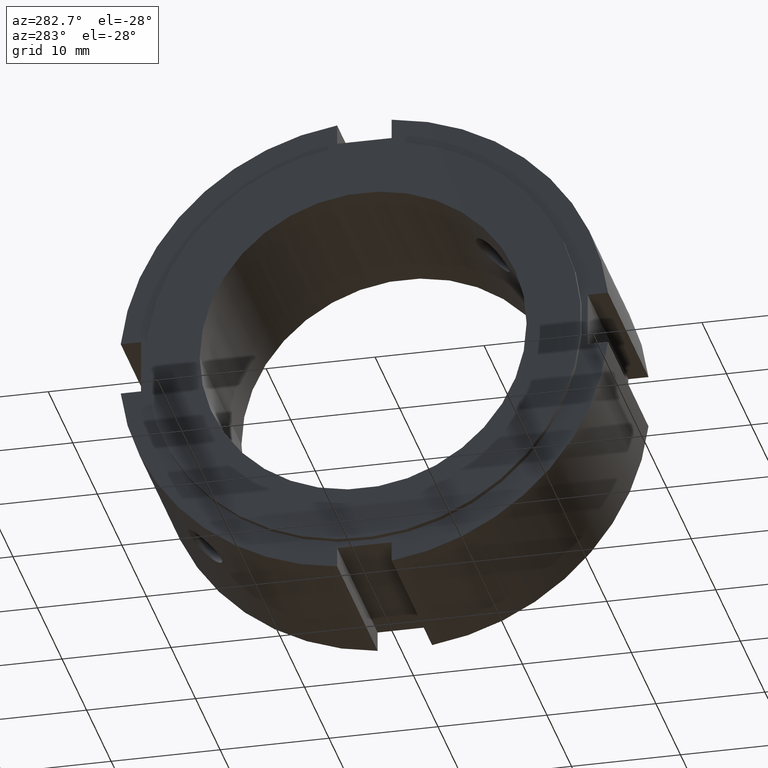
[diagram: clean part render]
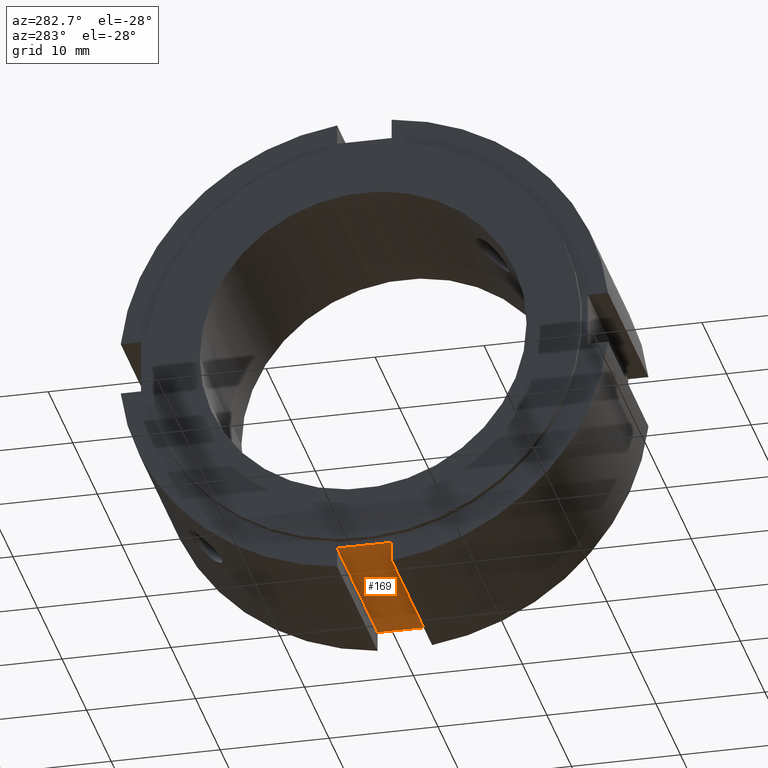
[diagram: same view with one face highlighted and labeled with its STEP entity id]
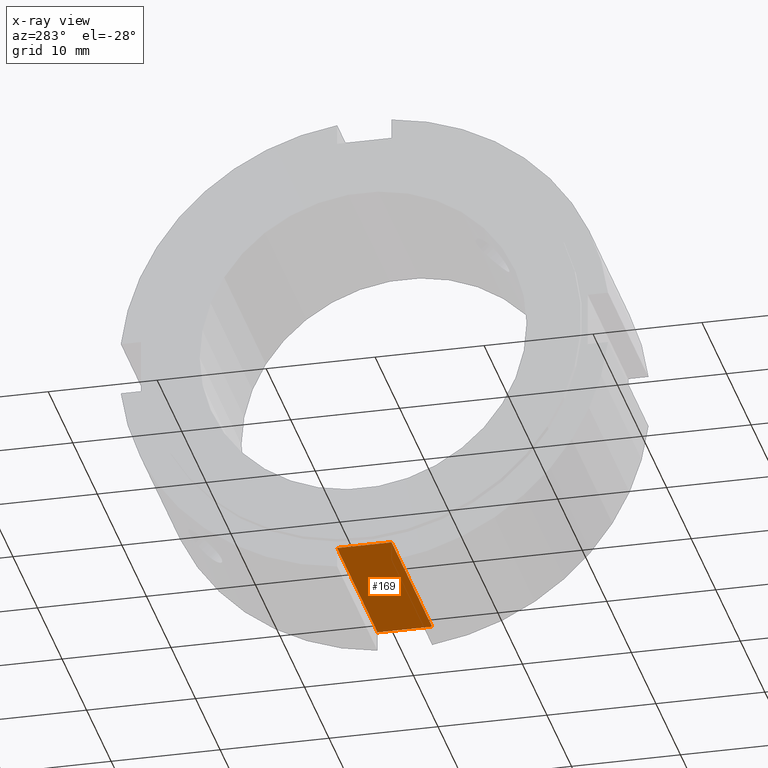
[diagram: x-ray of the same camera — body ghosted, the highlighted face saturated]
A machine part, auxiliary view. The second image highlights one B-rep face of the part: STEP entity #169.
The next image is the same camera in x-ray: the body ghosted, the highlighted face saturated — about 0% of this face is hidden behind the body in this view.
In plain terms, the highlighted planar face has unit normal (0, 0, 1).
Its self-contained STEP definition (entity closure, byte-faithful):
#83=CARTESIAN_POINT('',(16.500000000000007,2.499999999999996,-20.500000000000000));
#84=VERTEX_POINT('',#83);
#91=CARTESIAN_POINT('',(0.0,2.499999999999996,-20.500000000000000));
#92=VERTEX_POINT('',#91);
#93=CARTESIAN_POINT('',(16.500000000000007,2.499999999999996,-20.500000000000000));
#94=DIRECTION('',(-1.0,0.0,0.0));
#95=VECTOR('',#94,16.500000000000007);
#96=LINE('',#93,#95);
#97=EDGE_CURVE('',#84,#92,#96,.T.);
#123=CARTESIAN_POINT('',(0.0,-2.500000000000004,-20.500000000000000));
#124=VERTEX_POINT('',#123);
#131=CARTESIAN_POINT('',(16.500000000000007,-2.500000000000004,-20.500000000000000));
#132=VERTEX_POINT('',#131);
#133=CARTESIAN_POINT('',(16.500000000000007,-2.500000000000004,-20.500000000000000));
#134=DIRECTION('',(-1.0,0.0,0.0));
#135=VECTOR('',#134,16.500000000000007);
#136=LINE('',#133,#135);
#137=EDGE_CURVE('',#132,#124,#136,.T.);
#148=CARTESIAN_POINT('',(16.500000000000007,2.499999999999996,-20.500000000000000));
#149=DIRECTION('',(0.0,0.0,1.0));
#150=DIRECTION('',(0.0,-1.0,0.0));
#151=AXIS2_PLACEMENT_3D('',#148,#149,#150);
#152=PLANE('',#151);
#153=CARTESIAN_POINT('',(0.0,2.499999999999996,-20.500000000000000));
#154=DIRECTION('',(0.0,-1.0,0.0));
#155=VECTOR('',#154,5.0);
#156=LINE('',#153,#155);
#157=EDGE_CURVE('',#92,#124,#156,.T.);
#158=ORIENTED_EDGE('',*,*,#157,.F.);
#159=ORIENTED_EDGE('',*,*,#97,.F.);
#160=CARTESIAN_POINT('',(16.500000000000007,-2.500000000000004,-20.499999999999996));
#161=DIRECTION('',(0.0,1.0,0.0));
#162=VECTOR('',#161,5.0);
#163=LINE('',#160,#162);
#164=EDGE_CURVE('',#132,#84,#163,.T.);
#165=ORIENTED_EDGE('',*,*,#164,.F.);
#166=ORIENTED_EDGE('',*,*,#137,.T.);
#167=EDGE_LOOP('',(#158,#159,#165,#166));
#168=FACE_OUTER_BOUND('',#167,.T.);
#169=ADVANCED_FACE('',(#168),#152,.F.);